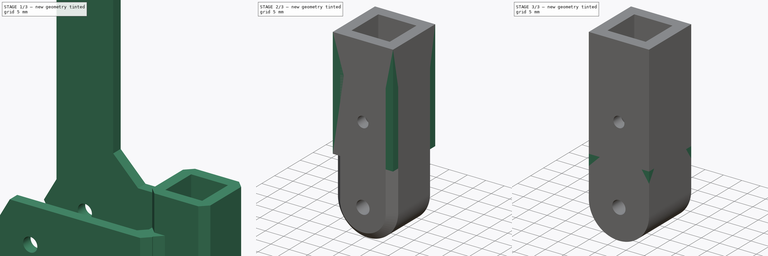
[diagram: build sequence overview — one tinted view per stage of 3, left to right]
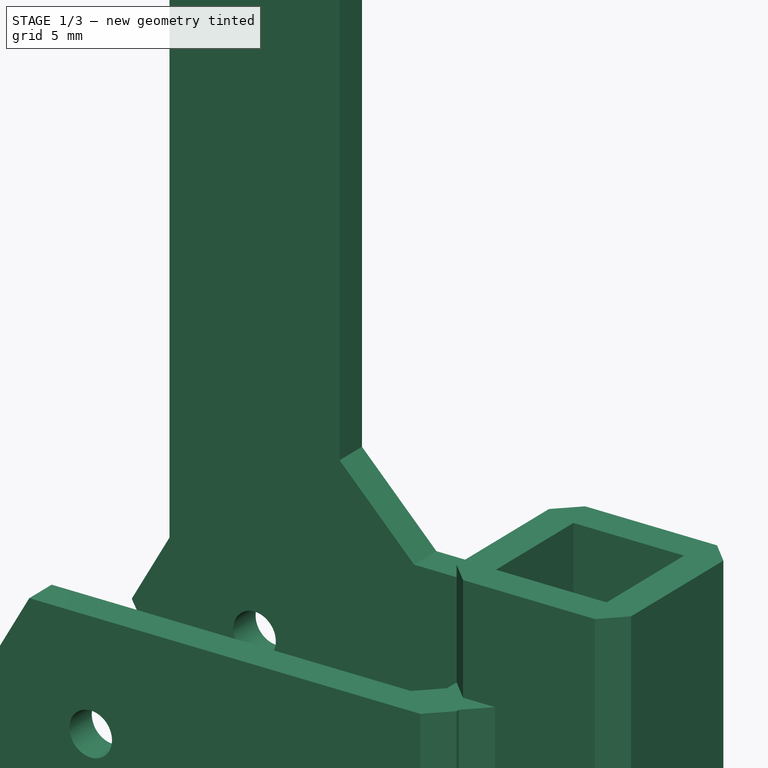
[diagram: stage 1 of 3 — iso view after this stage's code; geometry added in this stage tinted green]
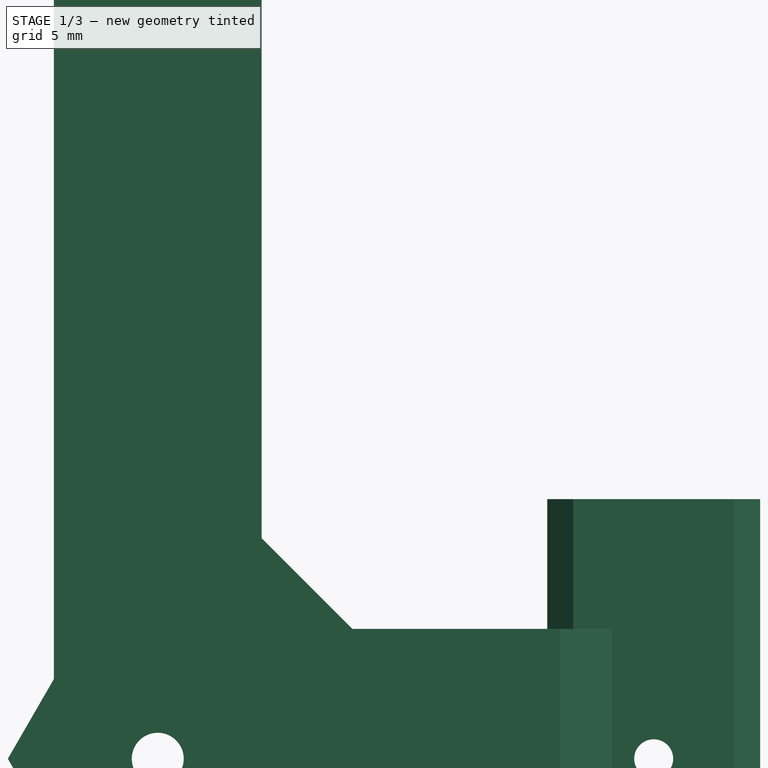
[diagram: stage 1 of 3 — front view after this stage's code; geometry added in this stage tinted green]
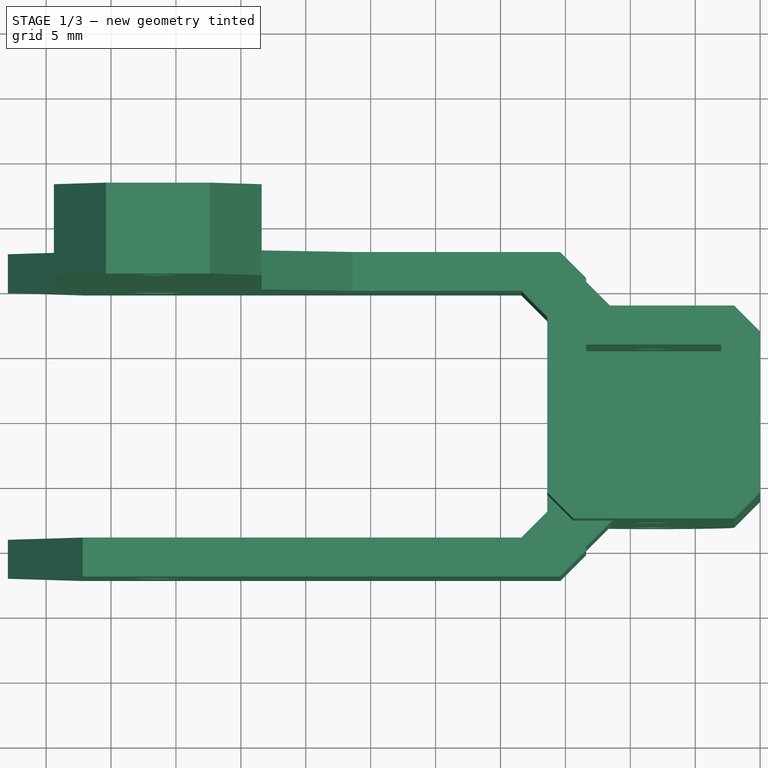
[diagram: stage 1 of 3 — top view after this stage's code; geometry added in this stage tinted green]
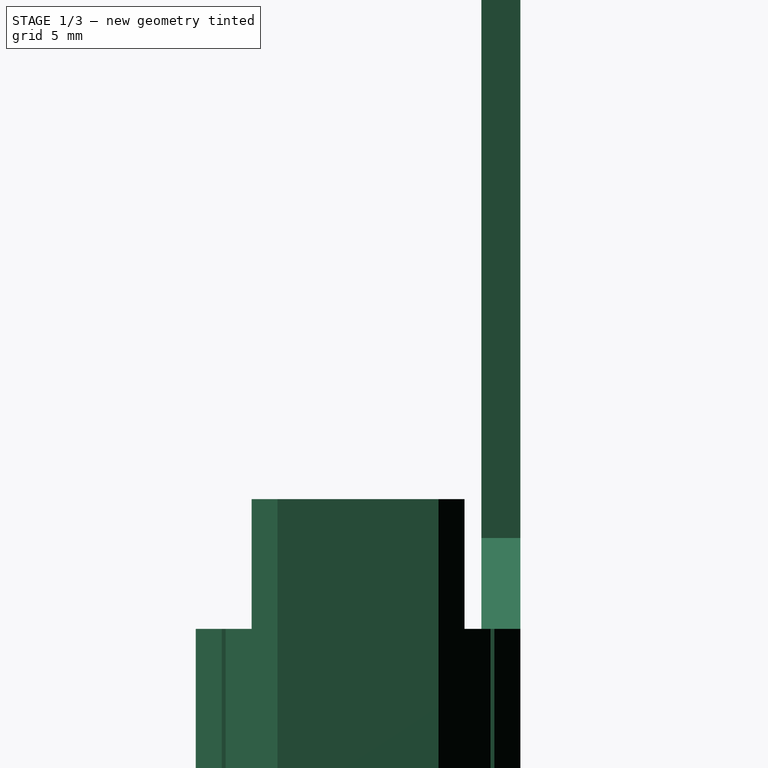
[diagram: stage 1 of 3 — right view after this stage's code; geometry added in this stage tinted green]
FCSTD DOCUMENT  (FreeCAD 0.16R6223 (Git))
Label: auxç
License: All rights reserved
LicenseURL: http://en.wikipedia.org/wiki/All_rights_reserved
objects: Sketcher::SketchObject×5, PartDesign::Pad×4, PartDesign::Pocket×2, Part::Feature×1, Part::Chamfer×1
note: 19 computed .brp shape members not serialized (recipe doc carries the construction recipe); baked Part::Feature solids carry a one-line shape summary decoded from their .brp

FEATURE [PartDesign::Pocket] Pocket002002009003008009
  Length = 50
  Placement = pos=(-105.8,0,-239.8) rot=(0,0,-1;1.5708rad)
  Type = 0
FEATURE [Part::Feature] Pad003001  label="Pad004"
  shape: bbox 16.4 x 16.4 x 49.2 mm, 14 faces (baked)
FEATURE [Part::Chamfer] Chamfer
  Base = -> Pad003001
  Edges = 2 edges r=2: [Edge23,Edge25]
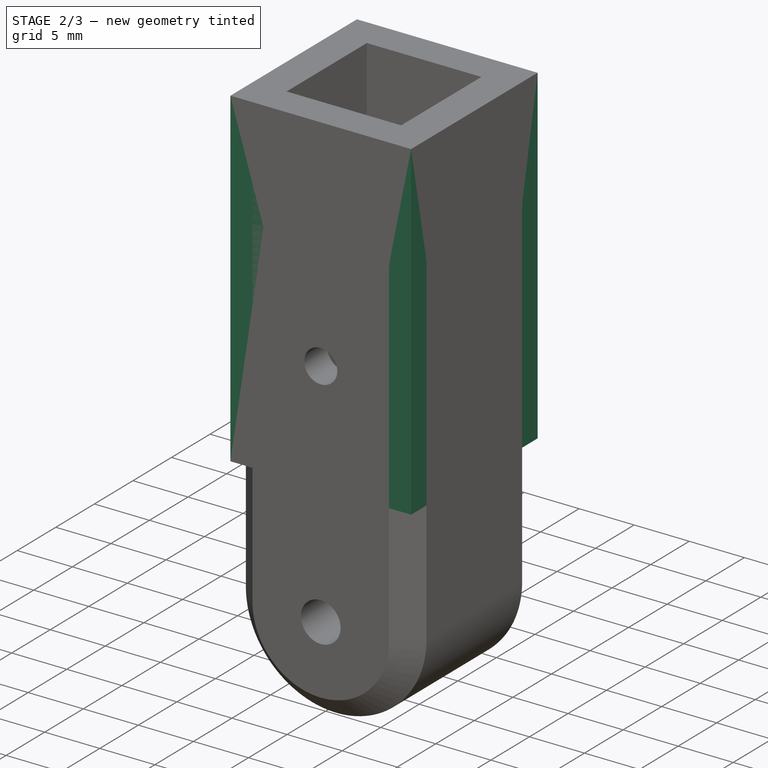
[diagram: stage 2 of 3 — iso view after this stage's code; geometry added in this stage tinted green]
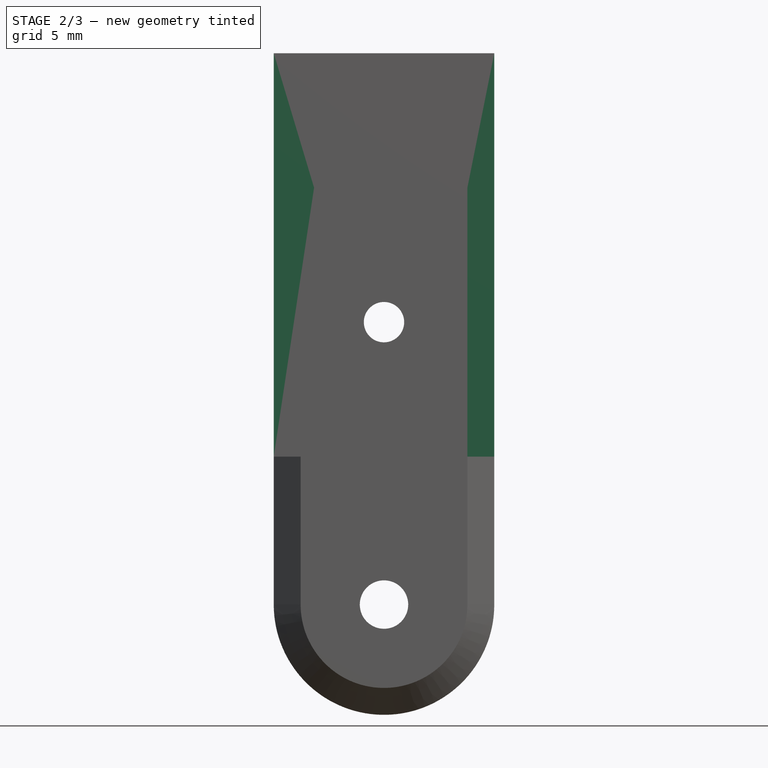
[diagram: stage 2 of 3 — front view after this stage's code; geometry added in this stage tinted green]
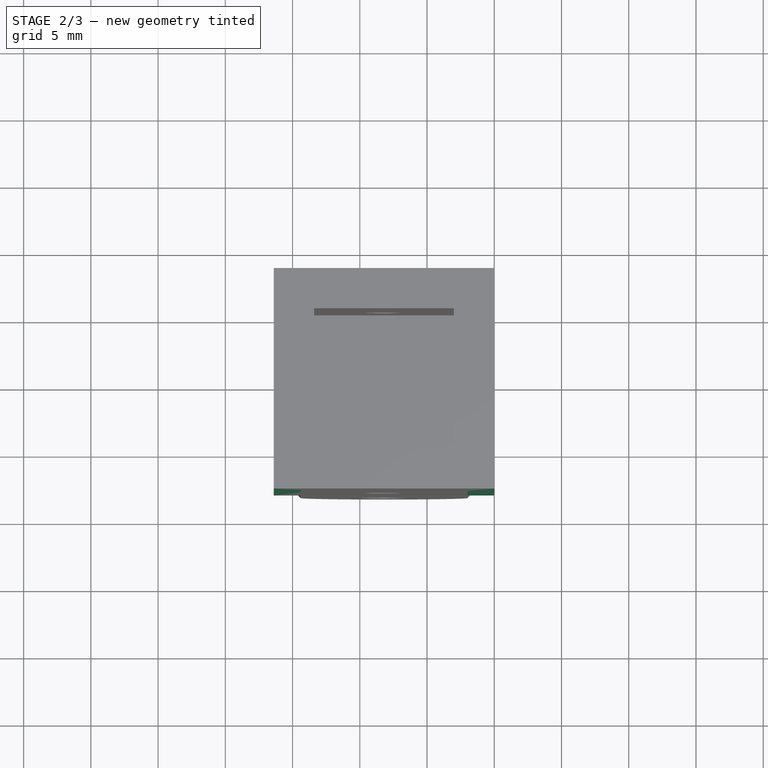
[diagram: stage 2 of 3 — top view after this stage's code; geometry added in this stage tinted green]
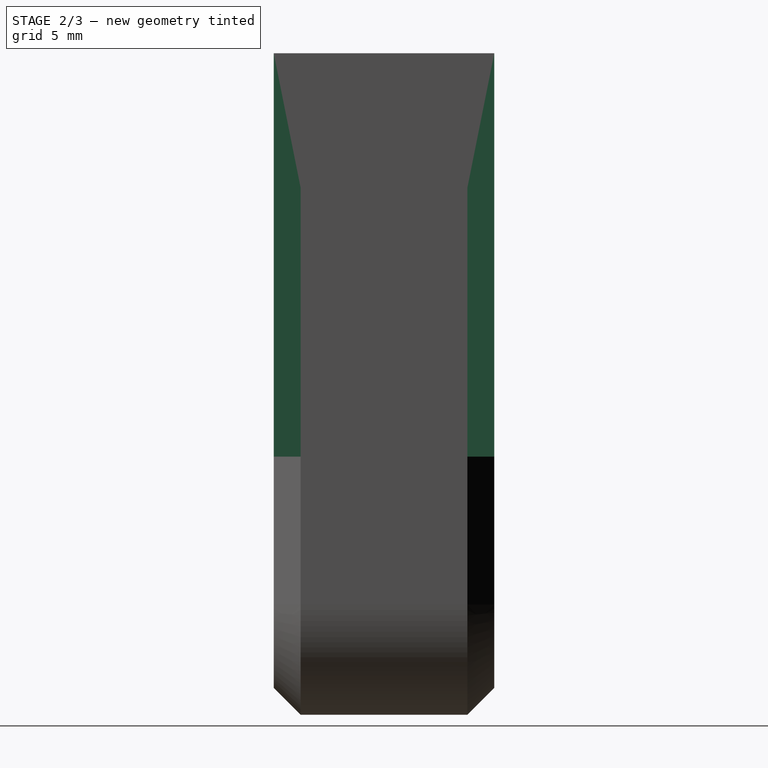
[diagram: stage 2 of 3 — right view after this stage's code; geometry added in this stage tinted green]
FEATURE [Sketcher::SketchObject] Sketch
  ExternalGeometry = -> [Pocket002002009003008009]
  Placement = pos=(-105.8,0,-233.8) rot=(0,0,-1;1.5708rad)
  Support = -> Pocket002002009003008009 [Face1]
  sketch-geometry (8):
    g0: LineSegment StartX=-8.2 StartY=464.4 StartZ=0 EndX=-8.2 EndY=459.4 EndZ=0
    g1: LineSegment StartX=-8.2 StartY=459.4 StartZ=0 EndX=8.2 EndY=459.4 EndZ=0
    g2: LineSegment StartX=8.2 StartY=459.4 StartZ=0 EndX=8.2 EndY=464.4 EndZ=0
    g3: LineSegment StartX=8.2 StartY=464.4 StartZ=0 EndX=32.2299 EndY=464.4 EndZ=0
    g4: LineSegment StartX=32.2299 StartY=464.4 StartZ=0 EndX=32.2299 EndY=387.139 EndZ=0
    g5: LineSegment StartX=32.2299 StartY=387.139 StartZ=0 EndX=-37.51 EndY=387.139 EndZ=0
    g6: LineSegment StartX=-37.51 StartY=387.139 StartZ=0 EndX=-37.51 EndY=464.4 EndZ=0
    g7: LineSegment StartX=-37.51 StartY=464.4 StartZ=0 EndX=-8.2 EndY=464.4 EndZ=0
  constraints (19):
    c: Vertical(g0)
    c: Coincident(g0,g1)
    c: Horizontal(g1)
    c: Coincident(g1,g2)
    c: Vertical(g2)
    c: Coincident(g2,g3)
    c: Horizontal(g3)
    c: Coincident(g3,g4)
    c: Vertical(g4)
    c: Coincident(g4,g5)
    c: Horizontal(g5)
    c: Coincident(g5,g6)
    c: Vertical(g6)
    c: Coincident(g6,g7)
    c: Horizontal(g7)
    c: Coincident(g0,g7)
    c: Coincident(g0,g-3)
    c: Coincident(g-4,g2)
    c: PointOnObject(g-5,g1)
FEATURE [PartDesign::Pocket] Pocket
  Length = 50
  Midplane = true
  Placement = pos=(-105.8,0,-239.8) rot=(0,0,-1;1.5708rad)
  Sketch = -> Sketch
  Type = 0
FEATURE [Sketcher::SketchObject] Sketch001
  ExternalGeometry = -> [Pocket]
  Placement = pos=(-105.8,0,-233.8) rot=(0,0,-1;1.5708rad)
  Support = -> Pocket [Face4]
  sketch-geometry (6):
    g0: LineSegment StartX=6.2 StartY=475.8 StartZ=0 EndX=8.2 EndY=475.8 EndZ=0
    g1: LineSegment StartX=8.2 StartY=475.8 StartZ=0 EndX=8.2 EndY=473.8 EndZ=0
    g2: LineSegment StartX=8.2 StartY=473.8 StartZ=0 EndX=6.2 EndY=475.8 EndZ=0
    g3: LineSegment StartX=-6.2 StartY=475.8 StartZ=0 EndX=-8.2 EndY=475.8 EndZ=0
    g4: LineSegment StartX=-8.2 StartY=475.8 StartZ=0 EndX=-8.2 EndY=473.8 EndZ=0
    g5: LineSegment StartX=-8.2 StartY=473.8 StartZ=0 EndX=-6.2 EndY=475.8 EndZ=0
  constraints (14):
    c: Horizontal(g0)
    c: Coincident(g0,g1)
    c: Coincident(g1,g2)
    c: Coincident(g2,g0)
    c: Horizontal(g3)
    c: Coincident(g3,g4)
    c: Vertical(g4)
    c: Coincident(g4,g5)
    c: Coincident(g5,g3)
    c: Vertical(g1)
    c: Coincident(g0,g-4)
    c: Coincident(g1,g-4)
    c: Coincident(g3,g-3)
    c: Coincident(g4,g-3)
FEATURE [PartDesign::Pad] Pad
  Length = 20
  Length2 = 100
  Placement = pos=(-105.8,0,-239.8) rot=(0,0,-1;1.5708rad)
  Reversed = true
  Sketch = -> Sketch001
  Type = 0
FEATURE [Sketcher::SketchObject] Sketch002
  ExternalGeometry = -> [Pad]
  Placement = pos=(-105.8,0,-233.8) rot=(0,0,-1;1.5708rad)
  Support = -> Pad [Face4]
  sketch-geometry (8):
    g0: LineSegment StartX=-8.2 StartY=475.8 StartZ=0 EndX=8.2 EndY=475.8 EndZ=0
    g1: LineSegment StartX=8.2 StartY=475.8 StartZ=0 EndX=8.2 EndY=459.4 EndZ=0
    g2: LineSegment StartX=8.2 StartY=459.4 StartZ=0 EndX=-8.2 EndY=459.4 EndZ=0
    g3: LineSegment StartX=-8.2 StartY=459.4 StartZ=0 EndX=-8.2 EndY=475.8 EndZ=0
    g4: LineSegment StartX=-5.2 StartY=472.8 StartZ=0 EndX=5.2 EndY=472.8 EndZ=0
    g5: LineSegment StartX=5.2 StartY=472.8 StartZ=0 EndX=5.2 EndY=462.4 EndZ=0
    g6: LineSegment StartX=5.2 StartY=462.4 StartZ=0 EndX=-5.2 EndY=462.4 EndZ=0
    g7: LineSegment StartX=-5.2 StartY=462.4 StartZ=0 EndX=-5.2 EndY=472.8 EndZ=0
  constraints (20):
    c: Coincident(g0,g1)
    c: Coincident(g1,g2)
    c: Coincident(g2,g3)
    c: Coincident(g3,g0)
    c: Horizontal(g0)
    c: Horizontal(g2)
    c: Vertical(g1)
    c: Vertical(g3)
    c: Coincident(g0,g-5)
    c: Coincident(g-7,g1)
    c: Coincident(g4,g5)
    c: Coincident(g5,g6)
    c: Coincident(g6,g7)
    c: Coincident(g7,g4)
    c: Horizontal(g4)
    c: Horizontal(g6)
    c: Vertical(g5)
    c: Vertical(g7)
    c: Coincident(g4,g-4)
    c: Coincident(g5,g-3)
FEATURE [PartDesign::Pad] Pad001
  Length = 10
  Length2 = 100
  Placement = pos=(-105.8,0,-239.8) rot=(0,0,-1;1.5708rad)
  Sketch = -> Sketch002
  Type = 0
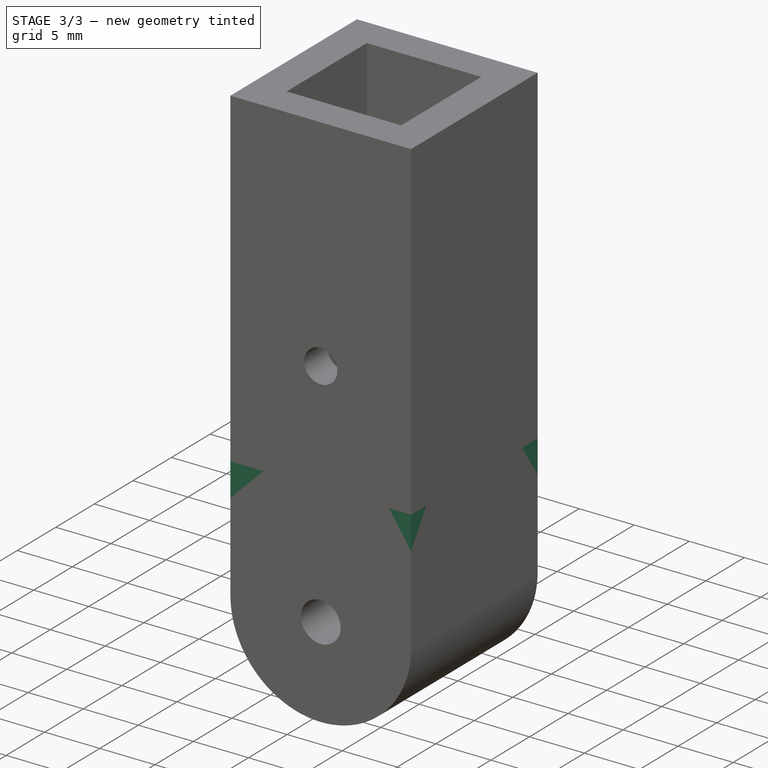
[diagram: stage 3 of 3 — iso view after this stage's code; geometry added in this stage tinted green]
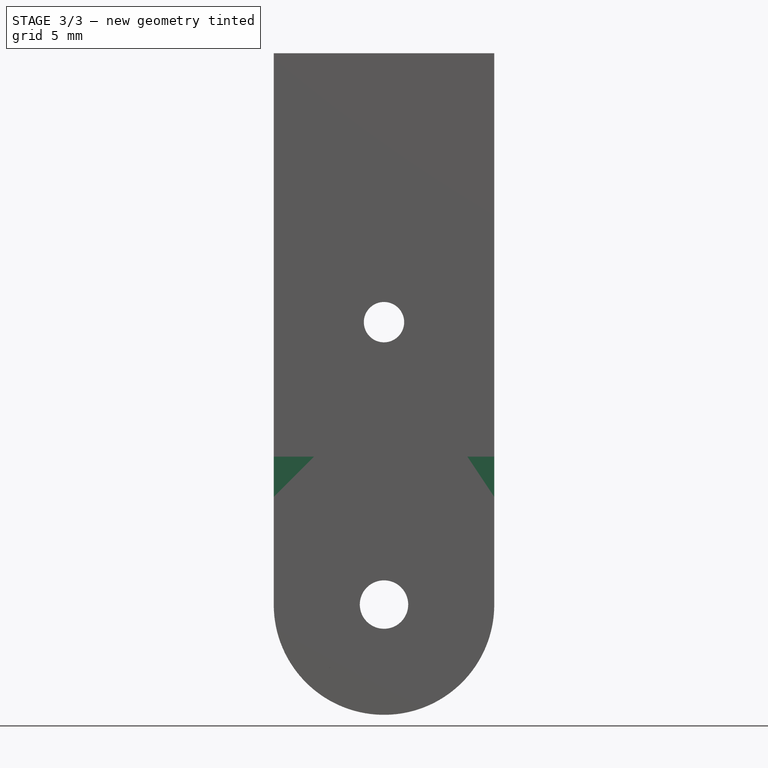
[diagram: stage 3 of 3 — front view after this stage's code; geometry added in this stage tinted green]
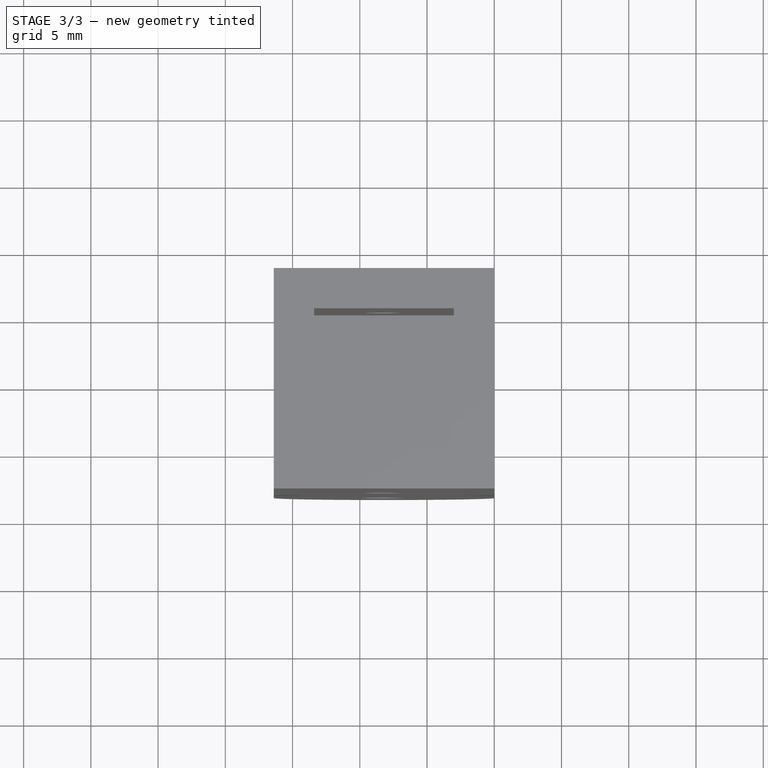
[diagram: stage 3 of 3 — top view after this stage's code; geometry added in this stage tinted green]
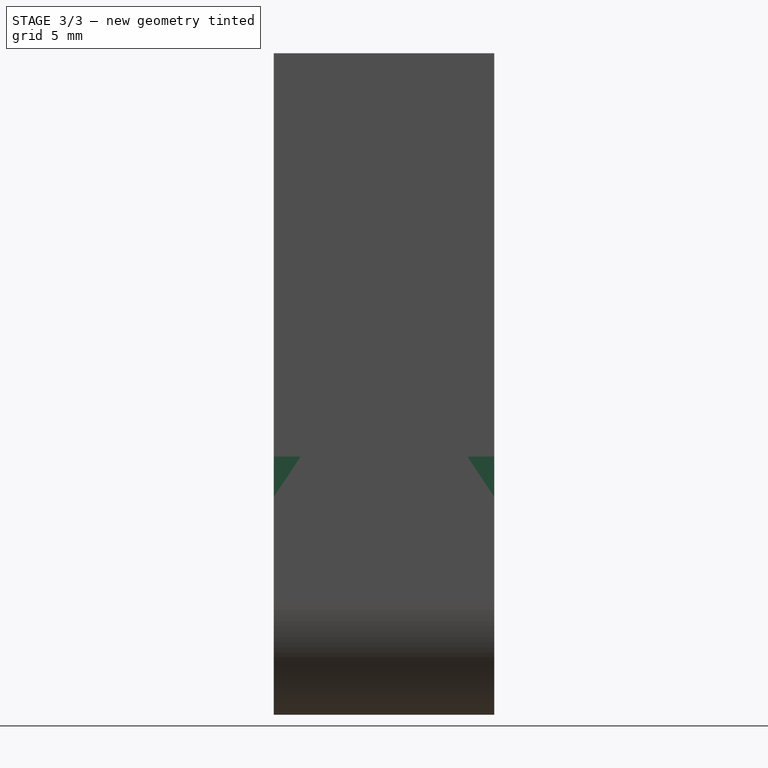
[diagram: stage 3 of 3 — right view after this stage's code; geometry added in this stage tinted green]
FEATURE [Sketcher::SketchObject] Sketch003
  ExternalGeometry = -> [Pad001]
  Placement = pos=(-105.8,0,-253.8) rot=(0.707107,-0.707107,0;3.14159rad)
  Support = -> Pad001 [Face6]
  sketch-geometry (4):
    g0: LineSegment StartX=-8.2 StartY=-459.4 StartZ=0 EndX=8.2 EndY=-459.4 EndZ=0
    g1: LineSegment StartX=8.2 StartY=-459.4 StartZ=0 EndX=8.2 EndY=-475.8 EndZ=0
    g2: LineSegment StartX=8.2 StartY=-475.8 StartZ=0 EndX=-8.2 EndY=-475.8 EndZ=0
    g3: LineSegment StartX=-8.2 StartY=-475.8 StartZ=0 EndX=-8.2 EndY=-459.4 EndZ=0
  constraints (10):
    c: Coincident(g0,g1)
    c: Coincident(g1,g2)
    c: Coincident(g2,g3)
    c: Coincident(g3,g0)
    c: Horizontal(g0)
    c: Horizontal(g2)
    c: Vertical(g1)
    c: Vertical(g3)
    c: Coincident(g1,g-4)
    c: Coincident(g0,g-3)
FEATURE [PartDesign::Pad] Pad002
  Length = 3
  Length2 = 100
  Placement = pos=(-105.8,0,-239.8) rot=(0,0,-1;1.5708rad)
  Sketch = -> Sketch003
  Type = 0
FEATURE [Sketcher::SketchObject] Sketch005
  ExternalGeometry = -> [Pad002]
  Placement = pos=(-105.8,8.2,-239.8) rot=(0,0.707107,0.707107;3.14159rad)
  Support = -> Pad002 [Face29]
  sketch-geometry (5):
    g0: ArcOfCircle CenterX=-467.6 CenterY=-25 CenterZ=0 NormalX=0 NormalY=0 NormalZ=1 Radius=8.2 StartAngle=3.14159 EndAngle=6.28319
    g1: Circle CenterX=-467.6 CenterY=-25 CenterZ=0 NormalX=0 NormalY=0 NormalZ=1 Radius=1.8
    g2: LineSegment StartX=-475.8 StartY=-25 StartZ=0 EndX=-475.8 EndY=-17 EndZ=0
    g3: LineSegment StartX=-475.8 StartY=-17 StartZ=0 EndX=-459.4 EndY=-17 EndZ=0
    g4: LineSegment StartX=-459.4 StartY=-17 StartZ=0 EndX=-459.4 EndY=-25 EndZ=0
  constraints (14):
    c: Coincident(g1,g0)
    c: Vertical(g2)
    c: Coincident(g2,g3)
    c: Horizontal(g3)
    c: Coincident(g3,g4)
    c: Vertical(g4)
    c: Coincident(g3,g-3)
    c: Coincident(g2,g-3)
    c: Coincident(g0,g2)
    c: Coincident(g4,g0)
    c: Tangent(g2,g0)
    c: Tangent(g4,g0)
    c: Distance(g0,g-4) = 11
    c: Radius(g1) = 1.8
FEATURE [PartDesign::Pad] Pad003
  Length = 10
  Length2 = 100
  Placement = pos=(-105.8,0,-239.8) rot=(0,0,-1;1.5708rad)
  Reversed = true
  Sketch = -> Sketch005
  Type = 3
  UpToFace = -> Pad002 [Face21]
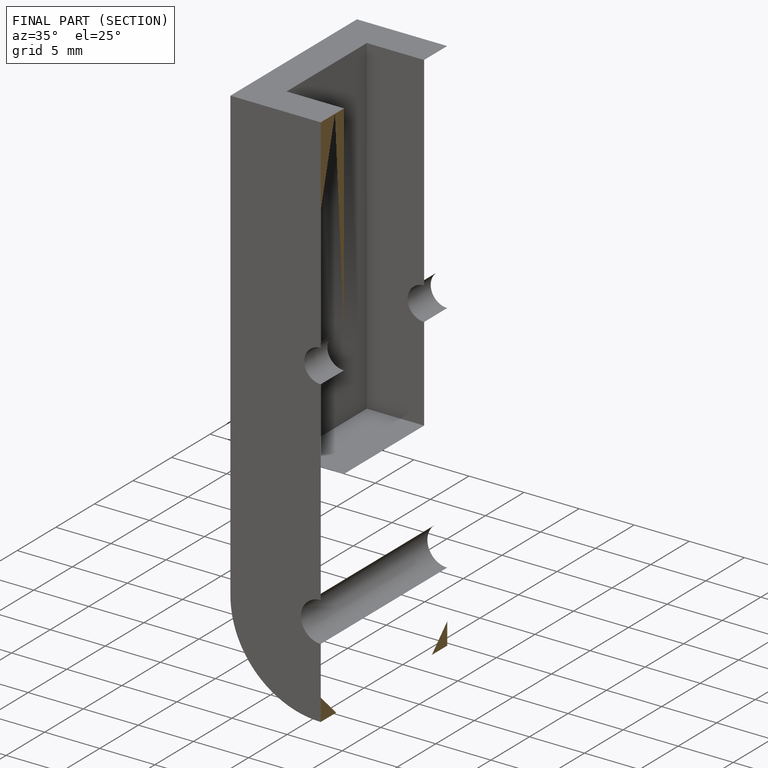
[diagram: finished part — half-section view (interior)]
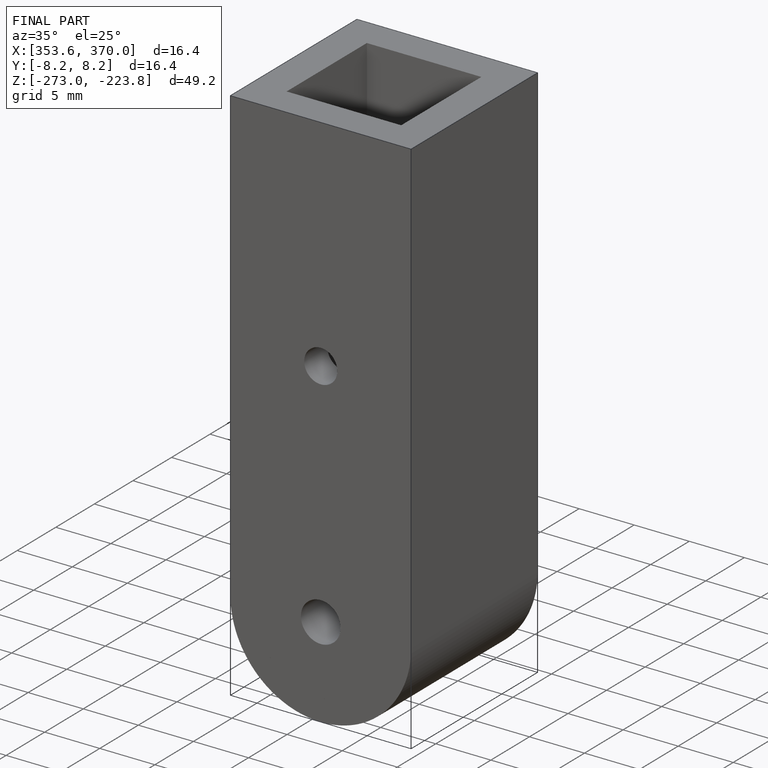
[diagram: finished part — iso view with bounding-box wireframe]
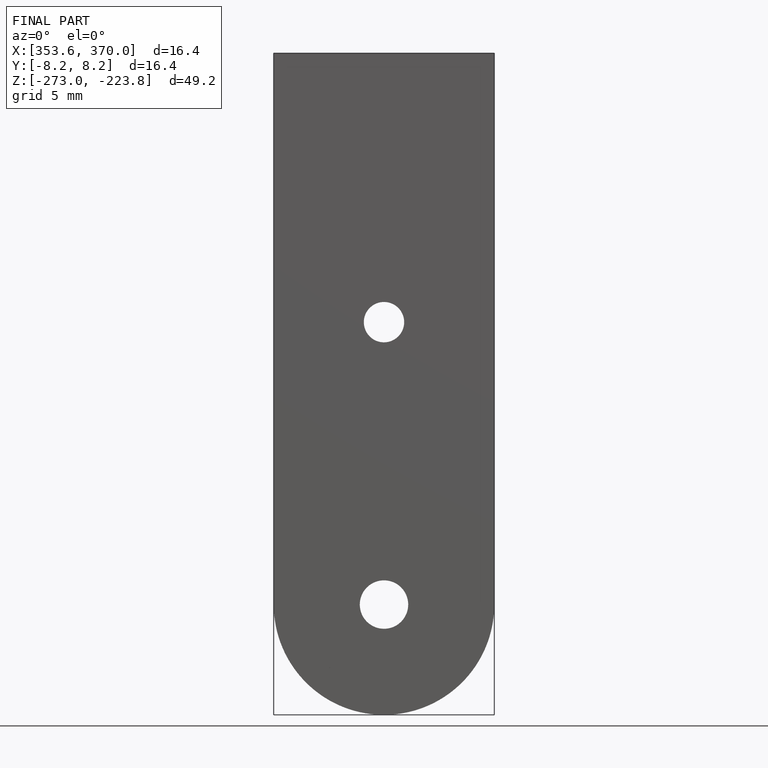
[diagram: finished part — front view with bounding-box wireframe]
